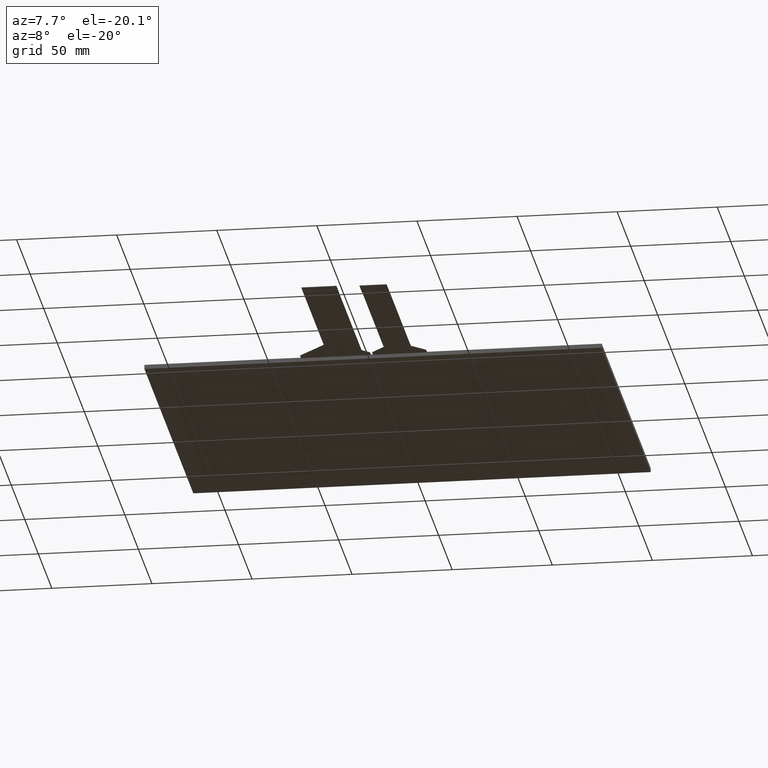
[diagram: clean part render]
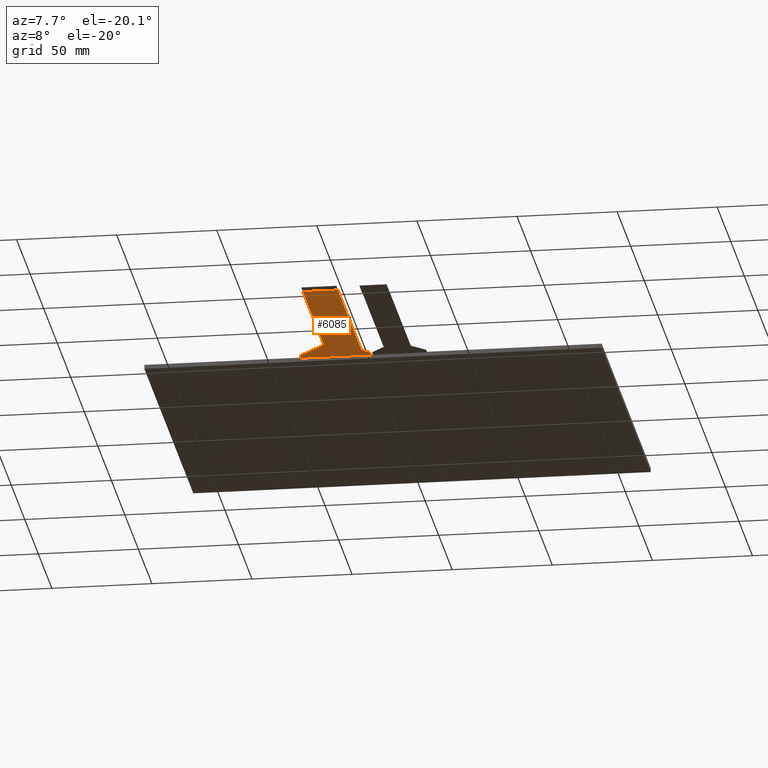
[diagram: same view with one face highlighted and labeled with its STEP entity id]
A machine part, auxiliary view. The second image highlights one B-rep face of the part: STEP entity #6085.
In plain terms, the highlighted planar face has unit normal (0, 0, -1).
Its self-contained STEP definition (entity closure, byte-faithful):
#315=PLANE('',#6423);
#609=FACE_OUTER_BOUND('',#903,.T.);
#903=EDGE_LOOP('',(#5704,#5705,#5706,#5707,#5708,#5709,#5710,#5711,#5712,
#5713,#5714,#5715));
#951=LINE('',#7992,#1791);
#954=LINE('',#8003,#1794);
#970=LINE('',#8044,#1810);
#1708=LINE('',#9538,#2548);
#1709=LINE('',#9540,#2549);
#1724=LINE('',#9570,#2564);
#1725=LINE('',#9573,#2565);
#1727=LINE('',#9576,#2567);
#1791=VECTOR('',#6499,10.);
#1794=VECTOR('',#6510,10.);
#1810=VECTOR('',#6548,10.);
#2548=VECTOR('',#7806,10.);
#2549=VECTOR('',#7809,10.);
#2564=VECTOR('',#7842,10.);
#2565=VECTOR('',#7845,10.);
#2567=VECTOR('',#7849,10.);
#2611=CIRCLE('',#6135,1.);
#2612=CIRCLE('',#6138,1.);
#2618=CIRCLE('',#6150,1.);
#2619=CIRCLE('',#6153,1.);
#2651=VERTEX_POINT('',#7974);
#2652=VERTEX_POINT('',#7976);
#2658=VERTEX_POINT('',#7990);
#2659=VERTEX_POINT('',#7994);
#2660=VERTEX_POINT('',#7995);
#2674=VERTEX_POINT('',#8036);
#2675=VERTEX_POINT('',#8038);
#2676=VERTEX_POINT('',#8042);
#2677=VERTEX_POINT('',#8046);
#3172=VERTEX_POINT('',#9536);
#3178=VERTEX_POINT('',#9568);
#3179=VERTEX_POINT('',#9572);
#3231=EDGE_CURVE('',#2651,#2652,#2611,.T.);
#3239=EDGE_CURVE('',#2651,#2658,#951,.T.);
#3240=EDGE_CURVE('',#2659,#2660,#2612,.T.);
#3244=EDGE_CURVE('',#2659,#2652,#954,.T.);
#3262=EDGE_CURVE('',#2674,#2675,#2618,.T.);
#3265=EDGE_CURVE('',#2674,#2676,#970,.T.);
#3266=EDGE_CURVE('',#2677,#2676,#2619,.T.);
#4012=EDGE_CURVE('',#2658,#3172,#1708,.T.);
#4013=EDGE_CURVE('',#3172,#2675,#1709,.T.);
#4028=EDGE_CURVE('',#2677,#3178,#1724,.T.);
#4029=EDGE_CURVE('',#3179,#2660,#1725,.T.);
#4031=EDGE_CURVE('',#3179,#3178,#1727,.T.);
#5704=ORIENTED_EDGE('',*,*,#3240,.F.);
#5705=ORIENTED_EDGE('',*,*,#3244,.T.);
#5706=ORIENTED_EDGE('',*,*,#3231,.F.);
#5707=ORIENTED_EDGE('',*,*,#3239,.T.);
#5708=ORIENTED_EDGE('',*,*,#4012,.T.);
#5709=ORIENTED_EDGE('',*,*,#4013,.T.);
#5710=ORIENTED_EDGE('',*,*,#3262,.F.);
#5711=ORIENTED_EDGE('',*,*,#3265,.T.);
#5712=ORIENTED_EDGE('',*,*,#3266,.F.);
#5713=ORIENTED_EDGE('',*,*,#4028,.T.);
#5714=ORIENTED_EDGE('',*,*,#4031,.F.);
#5715=ORIENTED_EDGE('',*,*,#4029,.T.);
#6085=ADVANCED_FACE('',(#609),#315,.T.);
#6135=AXIS2_PLACEMENT_3D('',#7977,#6488,#6489);
#6138=AXIS2_PLACEMENT_3D('',#7996,#6502,#6503);
#6150=AXIS2_PLACEMENT_3D('',#8039,#6542,#6543);
#6153=AXIS2_PLACEMENT_3D('',#8047,#6551,#6552);
#6423=AXIS2_PLACEMENT_3D('',#9575,#7847,#7848);
#6488=DIRECTION('center_axis',(0.,0.,-1.));
#6489=DIRECTION('ref_axis',(-0.923531889914345,0.383521639951696,0.));
#6499=DIRECTION('',(5.27173776538863E-16,-1.,0.));
#6502=DIRECTION('center_axis',(0.,0.,1.));
#6503=DIRECTION('ref_axis',(0.923531889914345,-0.383521639951696,0.));
#6510=DIRECTION('',(-0.708388929935268,-0.705822303377533,0.));
#6542=DIRECTION('center_axis',(0.,0.,-1.));
#6543=DIRECTION('ref_axis',(0.924226414342084,0.38184490965885,0.));
#6548=DIRECTION('',(-0.705822303377533,0.708388929935268,0.));
#6551=DIRECTION('center_axis',(0.,0.,1.));
#6552=DIRECTION('ref_axis',(-0.924226414342084,-0.381844909658848,0.));
#7806=DIRECTION('',(-1.,0.,0.));
#7809=DIRECTION('',(-1.07527653716722E-16,1.,0.));
#7842=DIRECTION('',(0.,1.,0.));
#7845=DIRECTION('',(2.31296463463575E-16,-1.,0.));
#7847=DIRECTION('center_axis',(0.,0.,-1.));
#7848=DIRECTION('ref_axis',(-1.,0.,0.));
#7849=DIRECTION('',(-1.,-1.55479810888425E-16,0.));
#7974=CARTESIAN_POINT('',(-4.74999999999996,-100.051690138011,-0.3));
#7976=CARTESIAN_POINT('',(-4.45582230337749,-99.3433012080754,-0.3));
#7977=CARTESIAN_POINT('Origin',(-3.74999999999996,-100.051690138011,-0.3));
#7990=CARTESIAN_POINT('',(-4.74999999999991,-187.3,-0.3));
#7992=CARTESIAN_POINT('',(-4.74999999999991,-192.3,-0.3));
#7994=CARTESIAN_POINT('',(-1.29417769662241,-96.1931118354027,-0.3));
#7995=CARTESIAN_POINT('',(-0.999999999999948,-95.4847229054675,-0.3));
#7996=CARTESIAN_POINT('Origin',(-1.99999999999995,-95.4847229054675,-0.3));
#8003=CARTESIAN_POINT('',(-4.74999999999996,-99.6364130434782,-0.3));
#8036=CARTESIAN_POINT('',(-22.5416110700646,-109.407328526044,-0.3));
#8038=CARTESIAN_POINT('',(-22.2499999999999,-110.113150829422,-0.3));
#8039=CARTESIAN_POINT('Origin',(-23.2499999999999,-110.113150829422,-0.3));
#8042=CARTESIAN_POINT('',(-35.7083889299352,-96.1926714739558,-0.3));
#8044=CARTESIAN_POINT('',(-36.,-95.8999999999999,-0.3));
#8046=CARTESIAN_POINT('',(-36.,-95.4868491705783,-0.3));
#8047=CARTESIAN_POINT('Origin',(-34.9999999999999,-95.4868491705783,-0.3));
#9536=CARTESIAN_POINT('',(-22.2499999999999,-187.3,-0.3));
#9538=CARTESIAN_POINT('',(-11.6249999999999,-187.3,-0.3));
#9540=CARTESIAN_POINT('',(-22.2499999999999,-109.7,-0.3));
#9568=CARTESIAN_POINT('',(-36.,-92.3,-0.3));
#9570=CARTESIAN_POINT('',(-36.,-92.3,-0.3));
#9572=CARTESIAN_POINT('',(-0.999999999999949,-92.2999999999999,-0.3));
#9573=CARTESIAN_POINT('',(-0.999999999999948,-95.8999999999999,-0.3));
#9575=CARTESIAN_POINT('Origin',(-18.4999999999999,-142.3,-0.3));
#9576=CARTESIAN_POINT('',(47.8750000000001,-92.2999999999999,-0.3));